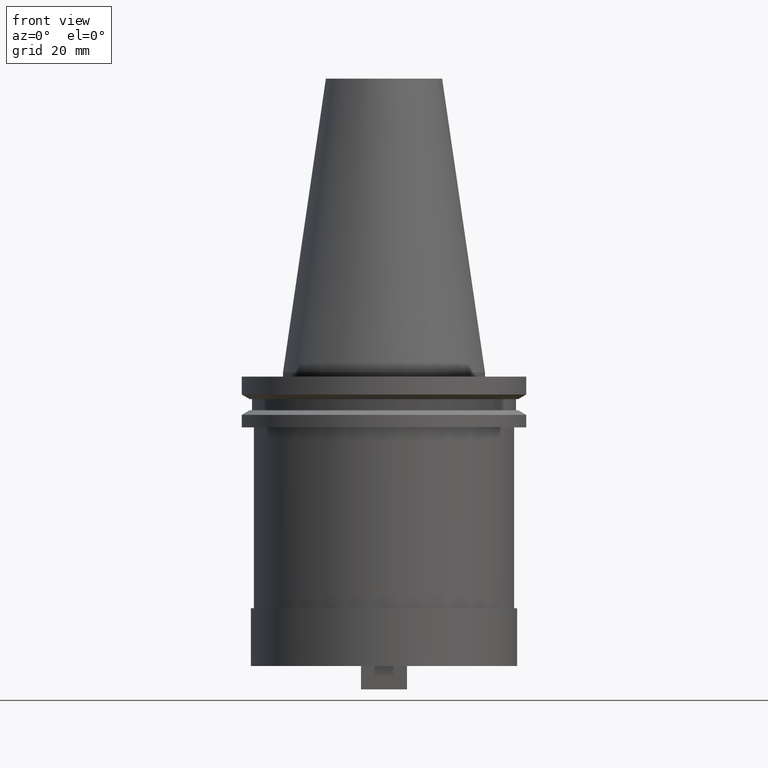
[diagram: clean part render]
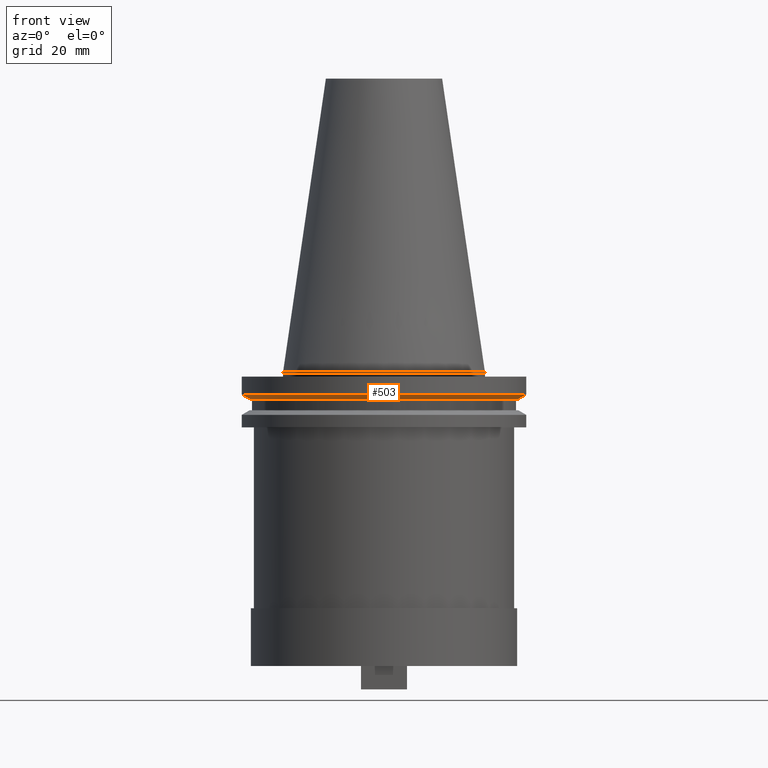
[diagram: same view with one face highlighted and labeled with its STEP entity id]
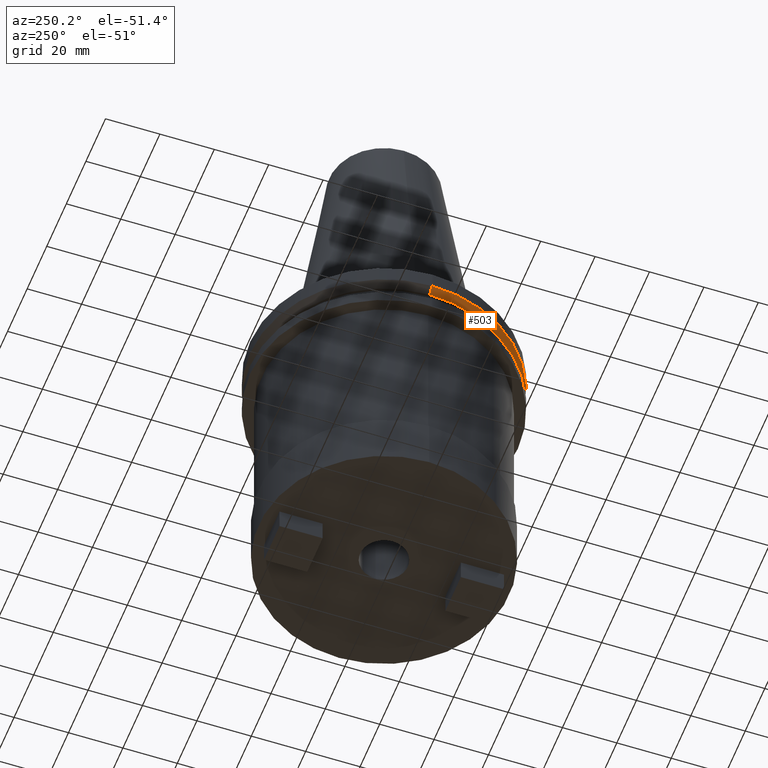
[diagram: same view with one face highlighted and labeled with its STEP entity id]
A machine part, front view. The second image highlights one B-rep face of the part: STEP entity #503.
A second angle (auxiliary view) of the same face is appended — the face is thin or edge-on in the first view.
In plain terms, the highlighted conical surface has half-angle 60 deg.
Its self-contained STEP definition (entity closure, byte-faithful):
#24 = CIRCLE ( 'NONE', #298, 49.21500000000000341 ) ;
#54 = LINE ( 'NONE', #227, #159 ) ;
#101 = VECTOR ( 'NONE', #844, 1000.000000000000114 ) ;
#106 = CARTESIAN_POINT ( 'NONE',  ( -46.43919780457007818, 5.857130358318727293E-15, -9.254999999999984794 ) ) ;
#146 = ORIENTED_EDGE ( 'NONE', *, *, #977, .T. ) ;
#159 = VECTOR ( 'NONE', #730, 1000.000000000000114 ) ;
#172 = DIRECTION ( 'NONE',  ( -0.000000000000000000, -0.000000000000000000, 1.000000000000000000 ) ) ;
#183 = CARTESIAN_POINT ( 'NONE',  ( -46.43919780457007818, 5.687161494633754392E-15, -9.254999999999984794 ) ) ;
#192 = CONICAL_SURFACE ( 'NONE', #531, 46.43919780457007818, 1.047197551196601628 ) ;
#205 = VERTEX_POINT ( 'NONE', #106 ) ;
#221 = CARTESIAN_POINT ( 'NONE',  ( 0.000000000000000000, 0.000000000000000000, -7.652389855251379380 ) ) ;
#227 = CARTESIAN_POINT ( 'NONE',  ( 46.43919780457007818, 0.000000000000000000, -9.254999999999984794 ) ) ;
#256 = LINE ( 'NONE', #183, #101 ) ;
#266 = DIRECTION ( 'NONE',  ( 1.000000000000000000, 0.000000000000000000, 0.000000000000000000 ) ) ;
#298 = AXIS2_PLACEMENT_3D ( 'NONE', #221, #1038, #266 ) ;
#320 = VERTEX_POINT ( 'NONE', #398 ) ;
#323 = CARTESIAN_POINT ( 'NONE',  ( -49.21500000000000341, 6.027099222003699404E-15, -7.652389855251379380 ) ) ;
#398 = CARTESIAN_POINT ( 'NONE',  ( 49.21500000000000341, 0.000000000000000000, -7.652389855251379380 ) ) ;
#407 = VERTEX_POINT ( 'NONE', #1039 ) ;
#423 = CARTESIAN_POINT ( 'NONE',  ( 0.000000000000000000, 0.000000000000000000, -9.254999999999984794 ) ) ;
#434 = CARTESIAN_POINT ( 'NONE',  ( 0.000000000000000000, 0.000000000000000000, -9.254999999999984794 ) ) ;
#439 = VERTEX_POINT ( 'NONE', #323 ) ;
#501 = EDGE_LOOP ( 'NONE', ( #880, #146, #779, #868 ) ) ;
#503 = ADVANCED_FACE ( 'NONE', ( #661 ), #192, .T. ) ;
#531 = AXIS2_PLACEMENT_3D ( 'NONE', #423, #669, #761 ) ;
#603 = CIRCLE ( 'NONE', #910, 46.43919780457007818 ) ;
#661 = FACE_OUTER_BOUND ( 'NONE', #501, .T. ) ;
#669 = DIRECTION ( 'NONE',  ( -0.000000000000000000, -0.000000000000000000, 1.000000000000000000 ) ) ;
#691 = EDGE_CURVE ( 'NONE', #439, #320, #24, .T. ) ;
#730 = DIRECTION ( 'NONE',  ( 0.8660254037844405950, 0.000000000000000000, 0.4999999999999965583 ) ) ;
#761 = DIRECTION ( 'NONE',  ( 1.000000000000000000, 0.000000000000000000, 0.000000000000000000 ) ) ;
#779 = ORIENTED_EDGE ( 'NONE', *, *, #860, .T. ) ;
#844 = DIRECTION ( 'NONE',  ( -0.8660254037844405950, 1.060575238724909133E-16, 0.4999999999999965583 ) ) ;
#860 = EDGE_CURVE ( 'NONE', #407, #320, #54, .T. ) ;
#868 = ORIENTED_EDGE ( 'NONE', *, *, #691, .F. ) ;
#880 = ORIENTED_EDGE ( 'NONE', *, *, #919, .F. ) ;
#910 = AXIS2_PLACEMENT_3D ( 'NONE', #434, #172, #1086 ) ;
#919 = EDGE_CURVE ( 'NONE', #205, #439, #256, .T. ) ;
#977 = EDGE_CURVE ( 'NONE', #205, #407, #603, .T. ) ;
#1038 = DIRECTION ( 'NONE',  ( -0.000000000000000000, -0.000000000000000000, 1.000000000000000000 ) ) ;
#1039 = CARTESIAN_POINT ( 'NONE',  ( 46.43919780457007818, 0.000000000000000000, -9.254999999999984794 ) ) ;
#1086 = DIRECTION ( 'NONE',  ( 1.000000000000000000, 0.000000000000000000, 0.000000000000000000 ) ) ;